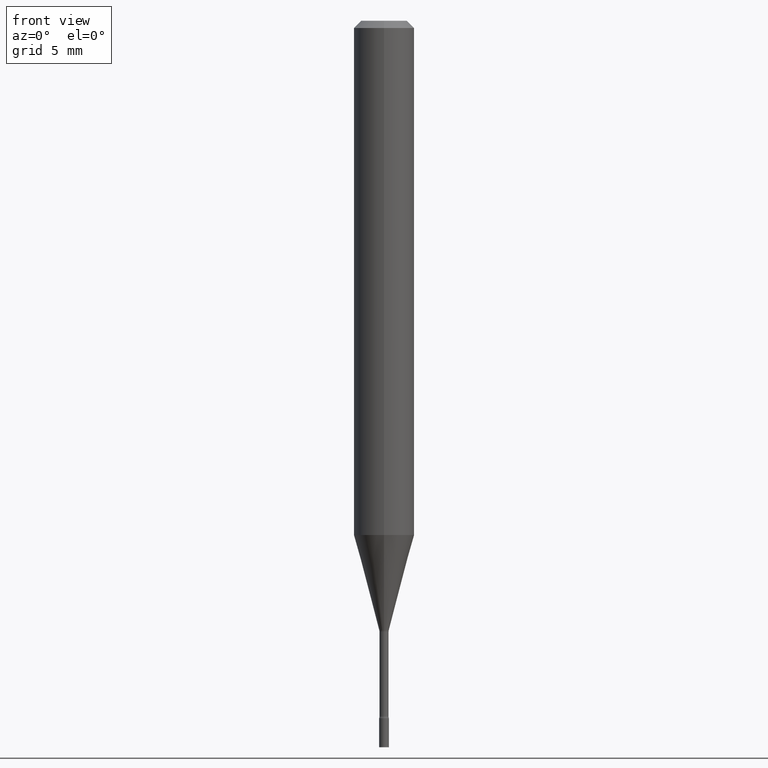
[diagram: clean part render]
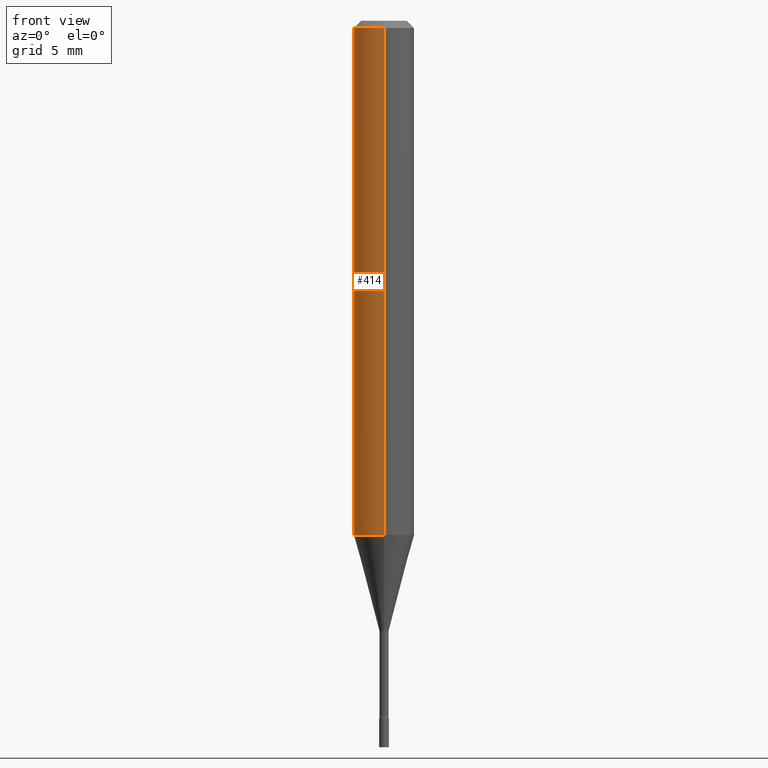
[diagram: same view with one face highlighted and labeled with its STEP entity id]
A machine part, front view. The second image highlights one B-rep face of the part: STEP entity #414.
In plain terms, the highlighted cylindrical surface (edge-blend (fillet) strip) has radius 1.5875 mm, axis along (-0, 0, 1).
Its self-contained STEP definition (entity closure, byte-faithful):
#22 = ORIENTED_EDGE ( 'NONE', *, *, #58, .T. ) ;
#25 = CARTESIAN_POINT ( 'NONE',  ( -4.364351673553912750E-16, -0.06250000000000005551, -0.01499999999999981209 ) ) ;
#38 = CYLINDRICAL_SURFACE ( 'NONE', #382, 0.06250000000000000000 ) ;
#58 = EDGE_CURVE ( 'NONE', #405, #443, #266, .T. ) ;
#77 = DIRECTION ( 'NONE',  ( -2.445343366611038169E-29, 3.491660975452831644E-15, 1.000000000000000000 ) ) ;
#94 = CARTESIAN_POINT ( 'NONE',  ( 4.440892098500625669E-16, 0.06250000000000000000, -2.182288109658019531E-16 ) ) ;
#105 = AXIS2_PLACEMENT_3D ( 'NONE', #482, #77, #514 ) ;
#152 = CARTESIAN_POINT ( 'NONE',  ( -4.364351673553657849E-16, -0.06250000000000371925, -1.061828102118092865 ) ) ;
#165 = VECTOR ( 'NONE', #221, 39.37007874015748143 ) ;
#166 = ORIENTED_EDGE ( 'NONE', *, *, #301, .T. ) ;
#192 = DIRECTION ( 'NONE',  ( -6.982962677686265922E-15, -1.000000000000000000, 3.491660975452831250E-15 ) ) ;
#197 = CARTESIAN_POINT ( 'NONE',  ( 4.440892098500887472E-16, 0.06249999999999995837, -0.01500000000000024751 ) ) ;
#221 = DIRECTION ( 'NONE',  ( -2.445343366611038169E-29, 3.491660975452831250E-15, 1.000000000000000000 ) ) ;
#224 = VERTEX_POINT ( 'NONE', #25 ) ;
#231 = CARTESIAN_POINT ( 'NONE',  ( -4.364351673553916201E-16, -0.06250000000000000000, 2.182288109658019531E-16 ) ) ;
#241 = LINE ( 'NONE', #231, #254 ) ;
#244 = DIRECTION ( 'NONE',  ( -6.982962677686265922E-15, -1.000000000000000000, 4.370956789862821150E-15 ) ) ;
#252 = EDGE_CURVE ( 'NONE', #405, #495, #271, .T. ) ;
#254 = VECTOR ( 'NONE', #510, 39.37007874015748143 ) ;
#266 = CIRCLE ( 'NONE', #417, 0.06250000000000000000 ) ;
#271 = LINE ( 'NONE', #94, #165 ) ;
#300 = CARTESIAN_POINT ( 'NONE',  ( 2.596534305995666904E-29, -3.707543746804889699E-15, -1.061828102118093087 ) ) ;
#301 = EDGE_CURVE ( 'NONE', #443, #224, #241, .T. ) ;
#341 = CIRCLE ( 'NONE', #105, 0.06250000000000000000 ) ;
#345 = EDGE_LOOP ( 'NONE', ( #498, #22, #166, #377 ) ) ;
#348 = EDGE_CURVE ( 'NONE', #495, #224, #341, .T. ) ;
#377 = ORIENTED_EDGE ( 'NONE', *, *, #348, .F. ) ;
#382 = AXIS2_PLACEMENT_3D ( 'NONE', #518, #438, #192 ) ;
#393 = FACE_OUTER_BOUND ( 'NONE', #345, .T. ) ;
#398 = CARTESIAN_POINT ( 'NONE',  ( 4.440892098500884514E-16, 0.06249999999999629463, -1.061828102118093309 ) ) ;
#405 = VERTEX_POINT ( 'NONE', #398 ) ;
#414 = ADVANCED_FACE ( 'NONE', ( #393 ), #38, .T. ) ;
#417 = AXIS2_PLACEMENT_3D ( 'NONE', #300, #463, #244 ) ;
#438 = DIRECTION ( 'NONE',  ( -2.445343366611038169E-29, 3.491660975452831644E-15, 1.000000000000000000 ) ) ;
#443 = VERTEX_POINT ( 'NONE', #152 ) ;
#463 = DIRECTION ( 'NONE',  ( -2.445343366611038169E-29, 3.491660975452831644E-15, 1.000000000000000000 ) ) ;
#482 = CARTESIAN_POINT ( 'NONE',  ( 3.668015049916564189E-31, -5.237491463179258781E-17, -0.01500000000000003067 ) ) ;
#495 = VERTEX_POINT ( 'NONE', #197 ) ;
#498 = ORIENTED_EDGE ( 'NONE', *, *, #252, .F. ) ;
#510 = DIRECTION ( 'NONE',  ( -2.445343366611038169E-29, 3.491660975452831250E-15, 1.000000000000000000 ) ) ;
#514 = DIRECTION ( 'NONE',  ( -6.982962677686265922E-15, -1.000000000000000000, 3.483106191921935554E-15 ) ) ;
#518 = CARTESIAN_POINT ( 'NONE',  ( 0.000000000000000000, 0.000000000000000000, 0.000000000000000000 ) ) ;